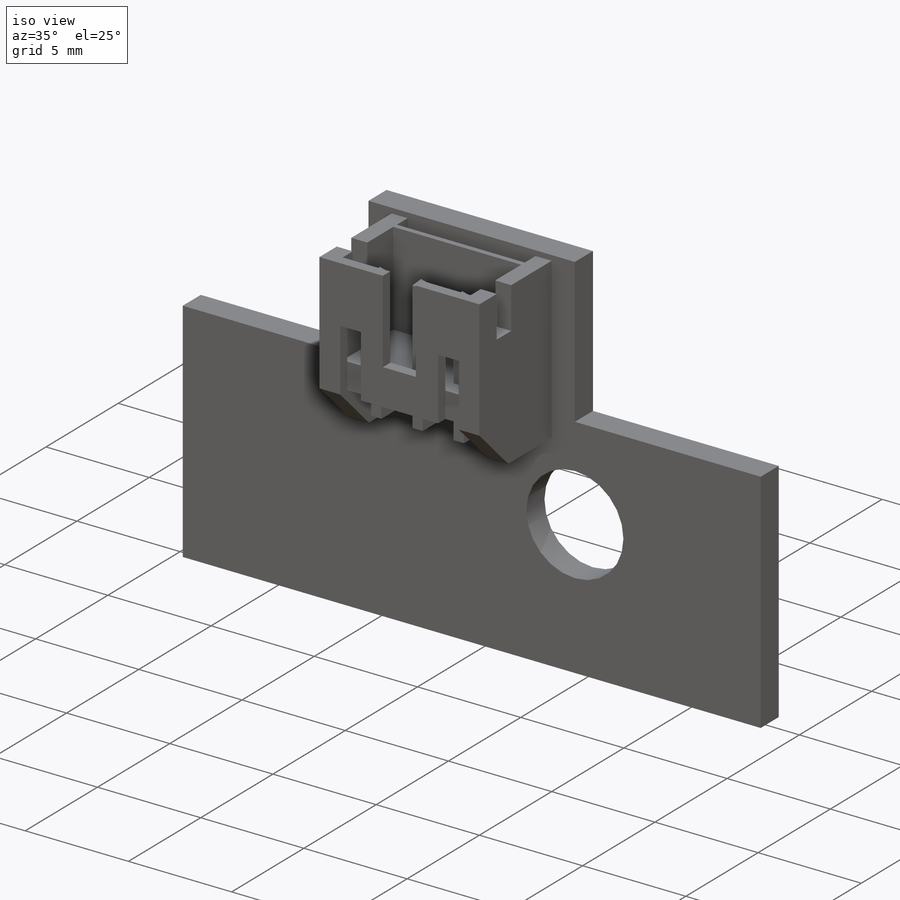
[diagram: iso view]
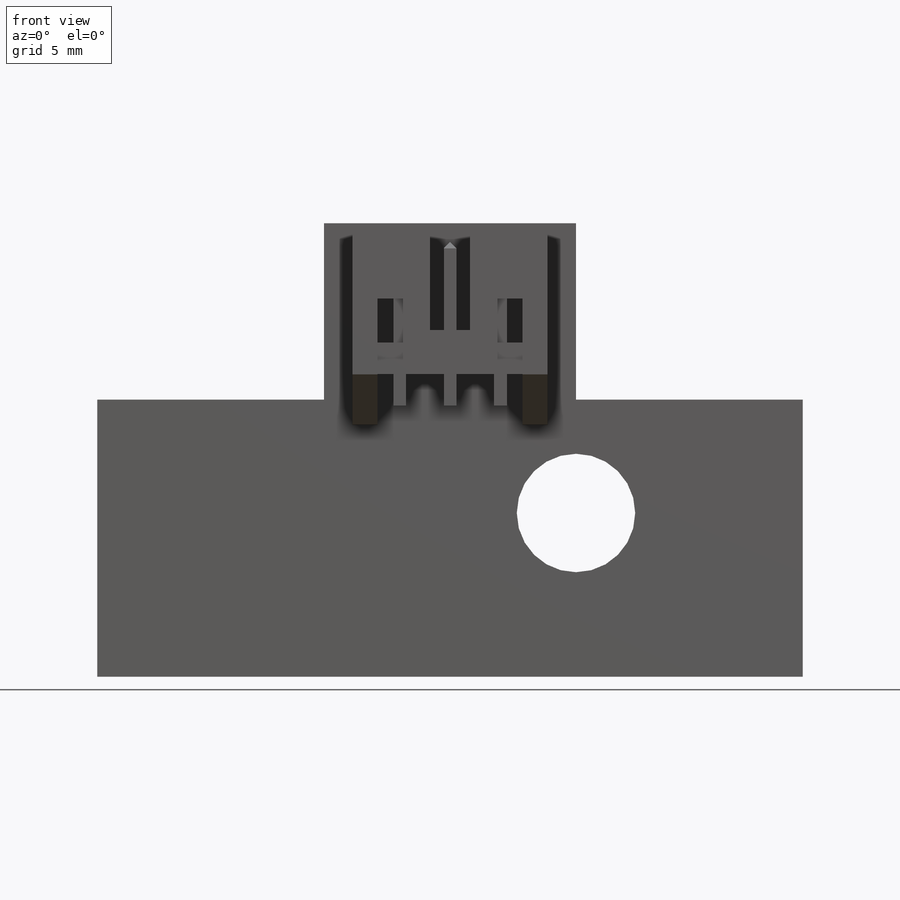
[diagram: front view]
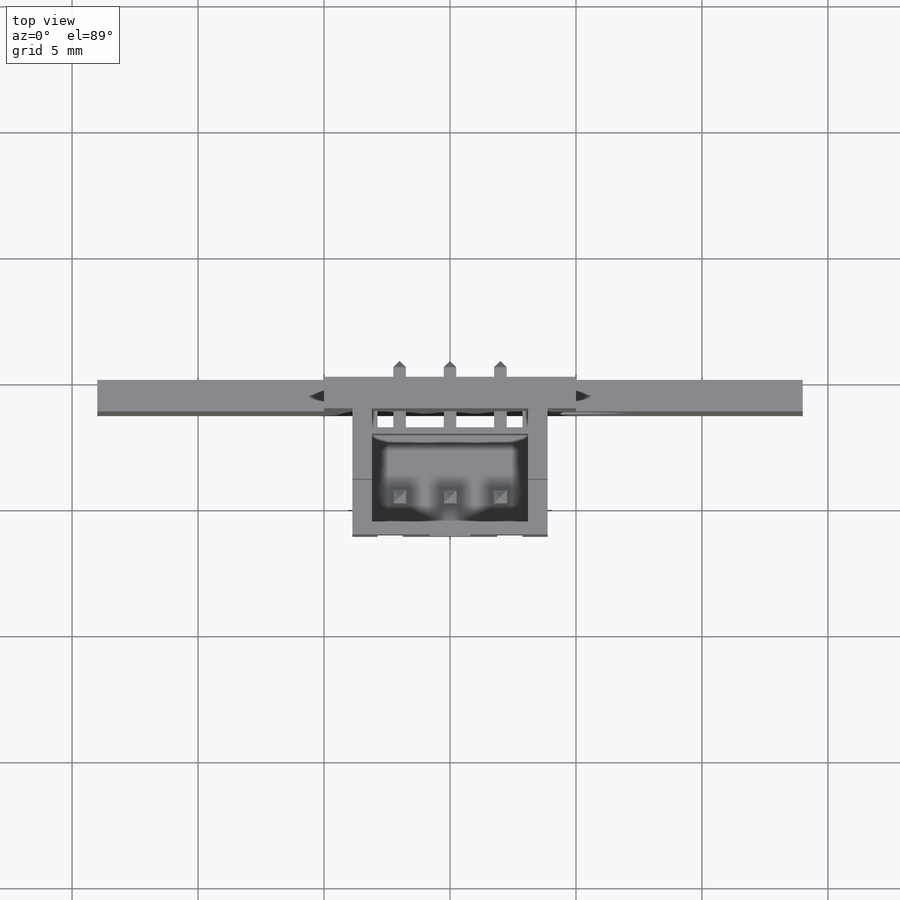
[diagram: top view]
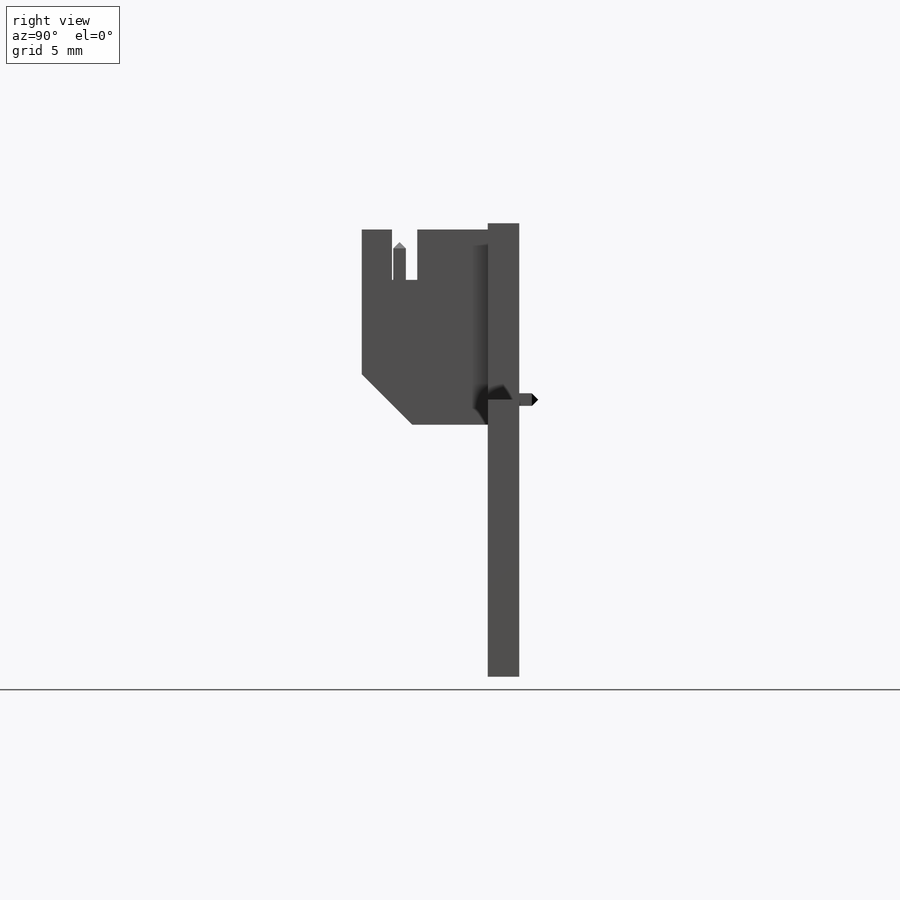
[diagram: right view]
SOLIDWORKS PART (.sldprt)
format: sldprt  version: not decoded by parser v0  size: 364,032 bytes
history: native  units: mm
features: sketch x9, cut_extrude x5, extrude x4, plane x3, chamfer x3, material x1 (+13 scaffold rows collapsed)
feature tree (38):
  scaffold x13  (default folders/planes/origin — collapsed)
  material  "Material <not specified>"
  plane  "Alzado"
  plane  "Planta"
  plane  "Vista lateral"
  sketch  "Croquis1"  dims[D5=4.7mm D1=28.0mm D2=11.0mm D3=10.0mm D4=7.0mm D6=6.5mm D7=9.0mm]
  extrude  "Extruir1"  Depth=1.25mm
  sketch  "Croquis2"  dims[c1.D1=0.25mm c1.D2=0.5mm c1.D3=0.5mm c1.D4=9.0mm c2.D1=7.75mm c2.D2=0.25mm c2.D3=7.75mm]
  extrude  "Extruir2"  Depth=5mm
  sketch  "Croquis3"  dims[D1=0.5mm D2=3.5mm D3=0.25mm D4=0.5mm]
  cut_extrude  "Extruir3"  Depth=4.5mm
  sketch  "Croquis4"  dims[D1=1.0mm D2=1.0mm D3=2.0mm]
  cut_extrude  "Extruir4"  Depth=5mm
  chamfer  "Chaflán1"  Distance=2mm Angle=45deg
  sketch  "Croquis5"  dims[D1=0.25mm]
  cut_extrude  "Extruir5"  [1 undecoded]
  sketch  "Croquis6"  dims[c1.D1=0.8mm c1.D2=4.0mm c1.D3=0.75mm c1.D4=1.0mm c2.D3=1.0mm c2.D4=3.0mm]
  cut_extrude  "Extruir6"  [1 undecoded]
  sketch  "Croquis7"  dims[D1=1.2mm D2=2.0mm D3=1.0mm]
  cut_extrude  "Extruir7"  [1 undecoded]
  sketch  "Croquis8"  dims[c1.D1=0.5mm c1.D2=0.5mm c1.D3=0.5mm c1.D4=0.5mm c1.D5=1.5mm c1.D6=1.5mm c2.D1=1.0mm c2.D2=0.5mm c2.D3=0.5mm c2.D4=0.5mm c2.D5=0.5mm c2.D6=1.5mm c2.D7=1.5mm]
  extrude  "Extruir8"  Depth=4mm
  chamfer  "Chaflán2"  Distance=0.25mm Angle=45deg
  sketch  "Croquis9"  dims[D1=0.5mm]
  extrude  "Extruir9"  Depth=5.75mm
  chamfer  "Chaflán3"  Distance=0.25mm Angle=45deg
decode coverage: 18 of 21 modeling features carry decoded parameters
note: 3 parameter values undecoded
summary: no parameter record found for 3 features
note: suppression state not decoded; provenance and decode notes live in map.json
